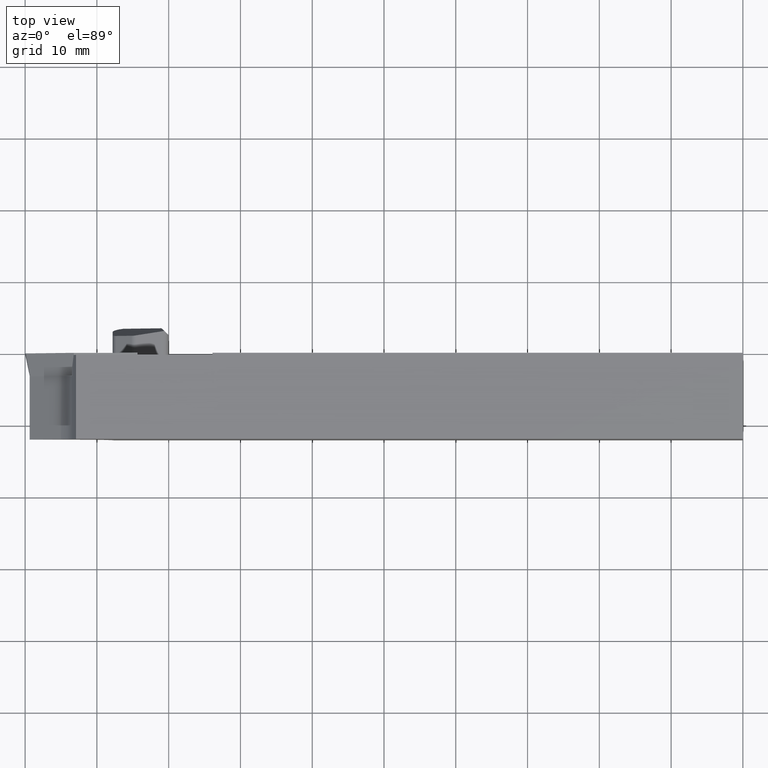
[diagram: clean part render]
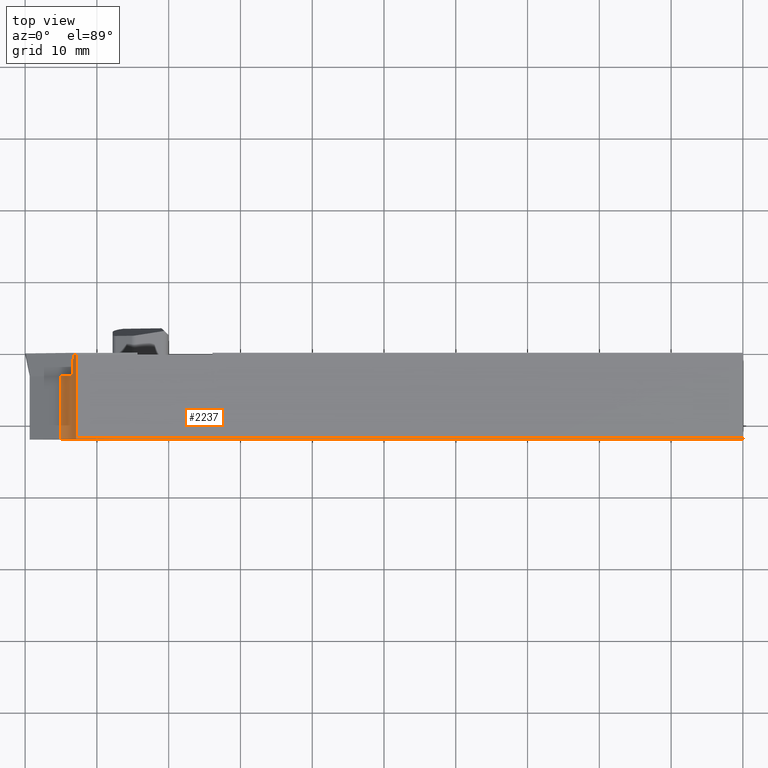
[diagram: same view with one face highlighted and labeled with its STEP entity id]
A machine part, top view. The second image highlights one B-rep face of the part: STEP entity #2237.
In plain terms, the highlighted cylindrical surface (partial cylindrical patch) has radius 6.1 mm, axis along (0, -1, -0).
Its self-contained STEP definition (entity closure, byte-faithful):
#8 = EDGE_CURVE ( 'NONE', #524, #141, #1280, .T. ) ;
#16 = CIRCLE ( 'NONE', #2222, 6.100000000000001400 ) ;
#64 = VERTEX_POINT ( 'NONE', #551 ) ;
#133 = CARTESIAN_POINT ( 'NONE',  ( -98.59943851816717600, -3.179999999999988200, -9.805159158975778100 ) ) ;
#141 = VERTEX_POINT ( 'NONE', #962 ) ;
#149 = LINE ( 'NONE', #1368, #1598 ) ;
#161 = CIRCLE ( 'NONE', #1455, 6.100000000000001400 ) ;
#185 = DIRECTION ( 'NONE',  ( -0.0000000000000000000, -1.000000000000000000, 0.0000000000000000000 ) ) ;
#228 = CARTESIAN_POINT ( 'NONE',  ( -98.59943851816717600, 126.7872233310596800, -9.805159158975778100 ) ) ;
#245 = DIRECTION ( 'NONE',  ( 0.0000000000000000000, -1.000000000000000000, -0.0000000000000000000 ) ) ;
#273 = AXIS2_PLACEMENT_3D ( 'NONE', #393, #2113, #573 ) ;
#316 = EDGE_CURVE ( 'NONE', #1110, #2061, #16, .T. ) ;
#324 = DIRECTION ( 'NONE',  ( 0.0000000000000000000, 0.0000000000000000000, 1.000000000000000000 ) ) ;
#327 = EDGE_CURVE ( 'NONE', #64, #1813, #398, .T. ) ;
#367 = CARTESIAN_POINT ( 'NONE',  ( -93.37706989594360600, -1.511666721175657600, -12.96040307469414500 ) ) ;
#393 = CARTESIAN_POINT ( 'NONE',  ( -98.59943851816717600, -12.00000000000001100, -9.805159158975778100 ) ) ;
#396 = CARTESIAN_POINT ( 'NONE',  ( -98.59943851816717600, -0.2999999999999947200, -9.805159158975778100 ) ) ;
#398 =( BOUNDED_CURVE ( )  B_SPLINE_CURVE ( 3, ( #2463, #367, #553, #1703 ),
 .UNSPECIFIED., .F., .T. ) 
 B_SPLINE_CURVE_WITH_KNOTS ( ( 4, 4 ),
 ( 0.9874437603678666300, 1.054680931260560700 ),
 .UNSPECIFIED. ) 
 CURVE ( )  GEOMETRIC_REPRESENTATION_ITEM ( )  RATIONAL_B_SPLINE_CURVE ( ( 1.000000000000000000, 0.9996232990521096700, 0.9996232990521096700, 1.000000000000000000 ) ) 
 REPRESENTATION_ITEM ( '' )  );
#493 = CARTESIAN_POINT ( 'NONE',  ( -95.01394847918307100, -3.179999999999946000, -14.74016282466294700 ) ) ;
#524 = VERTEX_POINT ( 'NONE', #1307 ) ;
#551 = CARTESIAN_POINT ( 'NONE',  ( -93.45038719976345500, -2.098800000000000200, -13.07582736600085100 ) ) ;
#553 = CARTESIAN_POINT ( 'NONE',  ( -93.30767369066742800, -0.9118407661698186800, -12.84257964427245600 ) ) ;
#573 = DIRECTION ( 'NONE',  ( 0.0000000000000000000, 0.0000000000000000000, -1.000000000000000000 ) ) ;
#593 = DIRECTION ( 'NONE',  ( 9.100188726435706600E-015, 0.0000000000000000000, -1.000000000000000000 ) ) ;
#602 = VECTOR ( 'NONE', #779, 1000.000000000000000 ) ;
#732 = EDGE_CURVE ( 'NONE', #2099, #64, #1573, .T. ) ;
#748 = VERTEX_POINT ( 'NONE', #807 ) ;
#777 = ORIENTED_EDGE ( 'NONE', *, *, #2204, .T. ) ;
#779 = DIRECTION ( 'NONE',  ( 0.0000000000000000000, -1.000000000000000000, -0.0000000000000000000 ) ) ;
#803 = ORIENTED_EDGE ( 'NONE', *, *, #8, .T. ) ;
#807 = CARTESIAN_POINT ( 'NONE',  ( -92.90798231763534400, -0.2999999999999947200, -11.99999999999998900 ) ) ;
#962 = CARTESIAN_POINT ( 'NONE',  ( -92.90798231763534400, -12.00000000000001100, -11.99999999999998900 ) ) ;
#986 = DIRECTION ( 'NONE',  ( -0.0000000000000000000, 1.000000000000000000, 0.0000000000000000000 ) ) ;
#1041 = FACE_OUTER_BOUND ( 'NONE', #2147, .T. ) ;
#1062 = VECTOR ( 'NONE', #986, 1000.000000000000000 ) ;
#1098 = LINE ( 'NONE', #1253, #602 ) ;
#1110 = VERTEX_POINT ( 'NONE', #493 ) ;
#1183 = CARTESIAN_POINT ( 'NONE',  ( -94.85603721686005900, -3.179999999999973100, -14.62148002633621700 ) ) ;
#1235 = CARTESIAN_POINT ( 'NONE',  ( -93.45038719976342600, -3.179999999999988200, -13.07582736600085100 ) ) ;
#1253 = CARTESIAN_POINT ( 'NONE',  ( -92.90798231763534400, 126.7872233310596800, -11.99999999999998000 ) ) ;
#1280 = CIRCLE ( 'NONE', #273, 6.100000000000001400 ) ;
#1307 = CARTESIAN_POINT ( 'NONE',  ( -95.01394847918307100, -12.00000000000001100, -14.74016282466294900 ) ) ;
#1316 = DIRECTION ( 'NONE',  ( 5.232608517700531700E-014, 0.0000000000000000000, 1.000000000000000000 ) ) ;
#1368 = CARTESIAN_POINT ( 'NONE',  ( -95.01394847918307100, 126.7872233310596800, -14.74016282466295100 ) ) ;
#1423 = ORIENTED_EDGE ( 'NONE', *, *, #732, .F. ) ;
#1427 = AXIS2_PLACEMENT_3D ( 'NONE', #133, #1446, #324 ) ;
#1446 = DIRECTION ( 'NONE',  ( -0.0000000000000000000, -1.000000000000000000, 0.0000000000000000000 ) ) ;
#1448 = EDGE_CURVE ( 'NONE', #1110, #524, #149, .T. ) ;
#1455 = AXIS2_PLACEMENT_3D ( 'NONE', #396, #1735, #593 ) ;
#1530 = DIRECTION ( 'NONE',  ( 0.0000000000000000000, 0.0000000000000000000, 1.000000000000000000 ) ) ;
#1532 = ORIENTED_EDGE ( 'NONE', *, *, #316, .F. ) ;
#1543 = DIRECTION ( 'NONE',  ( 0.0000000000000000000, -1.000000000000000000, -0.0000000000000000000 ) ) ;
#1567 = CARTESIAN_POINT ( 'NONE',  ( -93.45038719976342600, 126.7872233310596800, -13.07582736600084900 ) ) ;
#1573 = LINE ( 'NONE', #1567, #1062 ) ;
#1598 = VECTOR ( 'NONE', #245, 1000.000000000000000 ) ;
#1650 = CARTESIAN_POINT ( 'NONE',  ( -93.24227700878388700, -0.2999999999999999900, -12.72249022732956000 ) ) ;
#1703 = CARTESIAN_POINT ( 'NONE',  ( -93.24227700878388700, -0.2999999999999999900, -12.72249022732956000 ) ) ;
#1735 = DIRECTION ( 'NONE',  ( 0.0000000000000000000, 1.000000000000000000, 0.0000000000000000000 ) ) ;
#1766 = EDGE_CURVE ( 'NONE', #2061, #2099, #2245, .T. ) ;
#1769 = ORIENTED_EDGE ( 'NONE', *, *, #1766, .F. ) ;
#1813 = VERTEX_POINT ( 'NONE', #1650 ) ;
#1826 = CARTESIAN_POINT ( 'NONE',  ( -98.59943851816717600, -3.179999999999988200, -9.805159158975778100 ) ) ;
#1852 = AXIS2_PLACEMENT_3D ( 'NONE', #228, #1543, #1530 ) ;
#1953 = ORIENTED_EDGE ( 'NONE', *, *, #327, .F. ) ;
#2004 = CYLINDRICAL_SURFACE ( 'NONE', #1852, 6.100000000000001400 ) ;
#2020 = ORIENTED_EDGE ( 'NONE', *, *, #2214, .F. ) ;
#2061 = VERTEX_POINT ( 'NONE', #1183 ) ;
#2099 = VERTEX_POINT ( 'NONE', #1235 ) ;
#2113 = DIRECTION ( 'NONE',  ( -0.0000000000000000000, -1.000000000000000000, -0.0000000000000000000 ) ) ;
#2147 = EDGE_LOOP ( 'NONE', ( #777, #1953, #1423, #1769, #1532, #2341, #803, #2020 ) ) ;
#2204 = EDGE_CURVE ( 'NONE', #748, #1813, #161, .T. ) ;
#2214 = EDGE_CURVE ( 'NONE', #748, #141, #1098, .T. ) ;
#2222 = AXIS2_PLACEMENT_3D ( 'NONE', #1826, #185, #1316 ) ;
#2237 = ADVANCED_FACE ( 'NONE', ( #1041 ), #2004, .F. ) ;
#2245 = CIRCLE ( 'NONE', #1427, 6.100000000000001400 ) ;
#2341 = ORIENTED_EDGE ( 'NONE', *, *, #1448, .T. ) ;
#2463 = CARTESIAN_POINT ( 'NONE',  ( -93.45038719976345500, -2.098800000000000200, -13.07582736600085100 ) ) ;